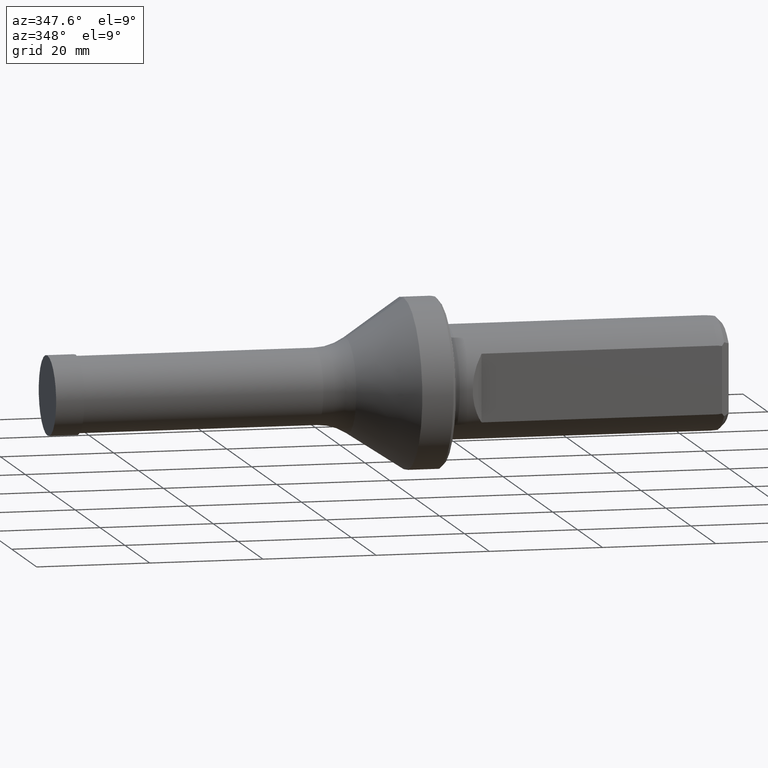
[diagram: clean part render]
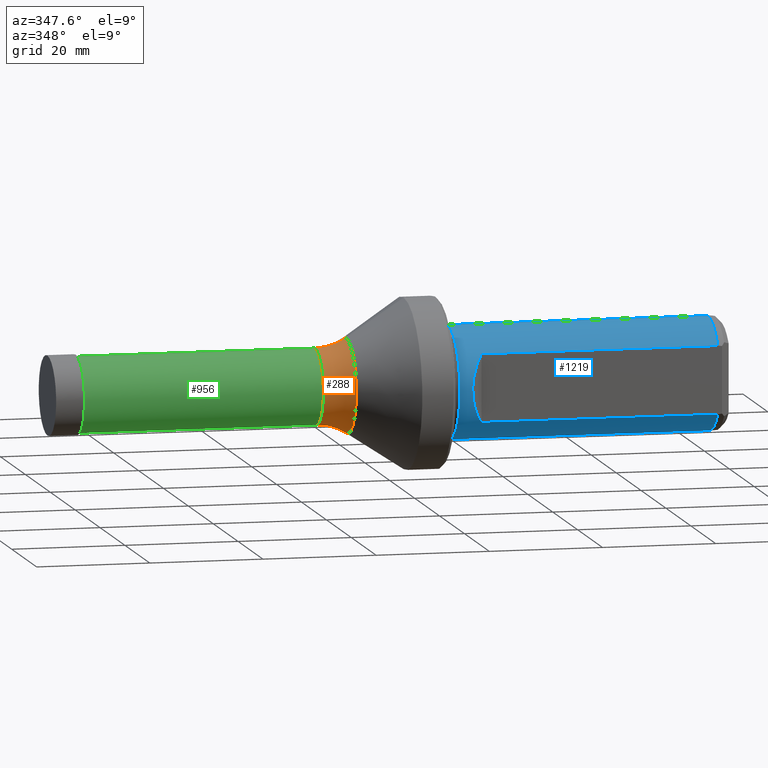
[diagram: same view with three faces highlighted in distinct colors, each labeled with its STEP entity id]
A machine part, auxiliary view with three faces highlighted in distinct colors.
Their STEP definitions:

[orange] entity #288 — the highlighted toroidal blend (fillet) surface has major radius 16.7 mm and minor (blend) radius 10 mm.
#18 = CARTESIAN_POINT ( 'NONE',  ( 52.26057916598296800, 0.0000000000000000000, 0.0000000000000000000 ) ) ;
#23 = DIRECTION ( 'NONE',  ( 0.0000000000000000000, -1.000000000000000000, 0.0000000000000000000 ) ) ;
#24 = DIRECTION ( 'NONE',  ( 0.0000000000000000000, 0.0000000000000000000, -1.000000000000000000 ) ) ;
#60 = DIRECTION ( 'NONE',  ( 0.0000000000000000000, -1.224646799147353200E-016, 1.000000000000000000 ) ) ;
#70 = CARTESIAN_POINT ( 'NONE',  ( 46.78499999999999700, 0.0000000000000000000, 0.0000000000000000000 ) ) ;
#104 = CARTESIAN_POINT ( 'NONE',  ( 46.78499999999999700, 2.045160154576080200E-015, -16.70000000000000300 ) ) ;
#105 = CARTESIAN_POINT ( 'NONE',  ( 46.78499999999999700, 8.205133554287266600E-016, -6.700000000000000200 ) ) ;
#134 = AXIS2_PLACEMENT_3D ( 'NONE', #322, #23, #24 ) ;
#138 = AXIS2_PLACEMENT_3D ( 'NONE', #18, #839, #1232 ) ;
#145 = AXIS2_PLACEMENT_3D ( 'NONE', #336, #333, #758 ) ;
#165 = AXIS2_PLACEMENT_3D ( 'NONE', #104, #316, #60 ) ;
#182 = ORIENTED_EDGE ( 'NONE', *, *, #882, .F. ) ;
#211 = DIRECTION ( 'NONE',  ( 0.0000000000000000000, 0.0000000000000000000, 1.000000000000000000 ) ) ;
#228 = DIRECTION ( 'NONE',  ( -1.000000000000000000, -0.0000000000000000000, -0.0000000000000000000 ) ) ;
#229 = ORIENTED_EDGE ( 'NONE', *, *, #866, .F. ) ;
#288 = ADVANCED_FACE ( 'NONE', ( #992 ), #1027, .F. ) ;
#316 = DIRECTION ( 'NONE',  ( -0.0000000000000000000, 1.000000000000000000, 1.224646799147353200E-016 ) ) ;
#322 = CARTESIAN_POINT ( 'NONE',  ( 46.78499999999999700, 0.0000000000000000000, 16.70000000000000300 ) ) ;
#333 = DIRECTION ( 'NONE',  ( -1.000000000000000000, -0.0000000000000000000, -0.0000000000000000000 ) ) ;
#336 = CARTESIAN_POINT ( 'NONE',  ( 46.78499999999999700, 0.0000000000000000000, 0.0000000000000000000 ) ) ;
#361 = CARTESIAN_POINT ( 'NONE',  ( 46.78499999999999700, 0.0000000000000000000, 6.700000000000000200 ) ) ;
#443 = AXIS2_PLACEMENT_3D ( 'NONE', #70, #228, #211 ) ;
#503 = CARTESIAN_POINT ( 'NONE',  ( 52.26057916598296800, 1.020415163614331900E-015, -8.332322138307837600 ) ) ;
#613 = CIRCLE ( 'NONE', #138, 8.332322138307835900 ) ;
#621 = CIRCLE ( 'NONE', #134, 9.999999999999998200 ) ;
#627 = VERTEX_POINT ( 'NONE', #105 ) ;
#631 = CIRCLE ( 'NONE', #165, 9.999999999999998200 ) ;
#636 = CIRCLE ( 'NONE', #145, 6.700000000000000200 ) ;
#758 = DIRECTION ( 'NONE',  ( 0.0000000000000000000, 0.0000000000000000000, 1.000000000000000000 ) ) ;
#839 = DIRECTION ( 'NONE',  ( -1.000000000000000000, -0.0000000000000000000, -0.0000000000000000000 ) ) ;
#866 = EDGE_CURVE ( 'NONE', #627, #1122, #636, .T. ) ;
#872 = EDGE_CURVE ( 'NONE', #627, #1060, #631, .T. ) ;
#881 = EDGE_CURVE ( 'NONE', #1060, #1126, #613, .T. ) ;
#882 = EDGE_CURVE ( 'NONE', #1122, #1126, #621, .T. ) ;
#901 = CARTESIAN_POINT ( 'NONE',  ( 52.26057916598296800, 0.0000000000000000000, 8.332322138307837600 ) ) ;
#992 = FACE_OUTER_BOUND ( 'NONE', #1029, .T. ) ;
#1027 = TOROIDAL_SURFACE ( 'NONE', #443, 16.70000000000000300, 9.999999999999998200 ) ;
#1029 = EDGE_LOOP ( 'NONE', ( #229, #1074, #1066, #182 ) ) ;
#1060 = VERTEX_POINT ( 'NONE', #503 ) ;
#1066 = ORIENTED_EDGE ( 'NONE', *, *, #881, .T. ) ;
#1074 = ORIENTED_EDGE ( 'NONE', *, *, #872, .T. ) ;
#1122 = VERTEX_POINT ( 'NONE', #361 ) ;
#1126 = VERTEX_POINT ( 'NONE', #901 ) ;
#1232 = DIRECTION ( 'NONE',  ( 0.0000000000000000000, 0.0000000000000000000, 1.000000000000000000 ) ) ;

[blue] entity #1219 — the highlighted cylindrical surface (partial cylindrical patch) has radius 10 mm, axis along (-1, -0, -0).
#2 = DIRECTION ( 'NONE',  ( -1.000000000000000000, -0.0000000000000000000, -0.0000000000000000000 ) ) ;
#7 = DIRECTION ( 'NONE',  ( 0.0000000000000000000, 0.0000000000000000000, 1.000000000000000000 ) ) ;
#36 = AXIS2_PLACEMENT_3D ( 'NONE', #330, #328, #538 ) ;
#79 = AXIS2_PLACEMENT_3D ( 'NONE', #125, #128, #131 ) ;
#102 = CARTESIAN_POINT ( 'NONE',  ( -0.5000000000000005600, 1.224646799147353300E-015, -10.00000000000000000 ) ) ;
#125 = CARTESIAN_POINT ( 'NONE',  ( 70.17953698905211000, 0.0000000000000000000, 0.0000000000000000000 ) ) ;
#128 = DIRECTION ( 'NONE',  ( 1.000000000000000000, -0.0000000000000000000, -0.0000000000000000000 ) ) ;
#131 = DIRECTION ( 'NONE',  ( 0.0000000000000000000, 0.0000000000000000000, -1.000000000000000000 ) ) ;
#187 = CARTESIAN_POINT ( 'NONE',  ( -0.5000000000000018900, -7.999999999999976000, 6.000000000000031100 ) ) ;
#189 = VERTEX_POINT ( 'NONE', #1212 ) ;
#207 = DIRECTION ( 'NONE',  ( 1.000000000000000000, 0.0000000000000000000, 0.0000000000000000000 ) ) ;
#208 = CARTESIAN_POINT ( 'NONE',  ( -0.5000000000000018900, -7.999999999999976000, -6.000000000000031100 ) ) ;
#246 = CARTESIAN_POINT ( 'NONE',  ( 70.17953698905211000, 0.0000000000000000000, -9.999999999999998200 ) ) ;
#254 = CARTESIAN_POINT ( 'NONE',  ( 74.45000000000000300, -7.999999999999991100, -6.000000000000034600 ) ) ;
#258 = ORIENTED_EDGE ( 'NONE', *, *, #1020, .T. ) ;
#277 = EDGE_LOOP ( 'NONE', ( #660, #258, #370, #709, #1089, #517, #739, #530 ) ) ;
#302 = DIRECTION ( 'NONE',  ( -1.000000000000000000, -0.0000000000000000000, -0.0000000000000000000 ) ) ;
#320 = AXIS2_PLACEMENT_3D ( 'NONE', #1230, #2, #7 ) ;
#328 = DIRECTION ( 'NONE',  ( -1.000000000000000000, -0.0000000000000000000, -0.0000000000000000000 ) ) ;
#330 = CARTESIAN_POINT ( 'NONE',  ( 116.2000000000001300, 0.0000000000000000000, 0.0000000000000000000 ) ) ;
#341 = CARTESIAN_POINT ( 'NONE',  ( -0.5000000000000005600, 0.0000000000000000000, 10.00000000000000000 ) ) ;
#346 = AXIS2_PLACEMENT_3D ( 'NONE', #742, #744, #738 ) ;
#348 = CARTESIAN_POINT ( 'NONE',  ( 116.2000000000001300, 1.224646799147353300E-015, -10.00000000000000000 ) ) ;
#370 = ORIENTED_EDGE ( 'NONE', *, *, #1023, .F. ) ;
#419 = FACE_OUTER_BOUND ( 'NONE', #277, .T. ) ;
#439 = VECTOR ( 'NONE', #527, 1000.000000000000000 ) ;
#442 = LINE ( 'NONE', #187, #439 ) ;
#444 = VECTOR ( 'NONE', #207, 1000.000000000000000 ) ;
#452 = CIRCLE ( 'NONE', #36, 10.00000000000000000 ) ;
#455 = LINE ( 'NONE', #208, #444 ) ;
#491 = VERTEX_POINT ( 'NONE', #933 ) ;
#493 = CIRCLE ( 'NONE', #79, 10.00000000000000000 ) ;
#517 = ORIENTED_EDGE ( 'NONE', *, *, #652, .T. ) ;
#524 = CARTESIAN_POINT ( 'NONE',  ( 74.45000000000000300, -7.999999999999991100, -6.000000000000034600 ) ) ;
#526 = CARTESIAN_POINT ( 'NONE',  ( 71.68076923076922900, -10.76923076923077700, -2.307692307692324400 ) ) ;
#527 = DIRECTION ( 'NONE',  ( -1.000000000000000000, -0.0000000000000000000, -0.0000000000000000000 ) ) ;
#529 = CARTESIAN_POINT ( 'NONE',  ( 74.45000000000000300, -7.999999999999991100, 6.000000000000025800 ) ) ;
#530 = ORIENTED_EDGE ( 'NONE', *, *, #983, .T. ) ;
#536 = CARTESIAN_POINT ( 'NONE',  ( 71.68076923076922900, -10.76923076923077700, 2.307692307692316800 ) ) ;
#538 = DIRECTION ( 'NONE',  ( 0.0000000000000000000, 0.0000000000000000000, 1.000000000000000000 ) ) ;
#614 = VECTOR ( 'NONE', #740, 1000.000000000000000 ) ;
#625 = LINE ( 'NONE', #341, #614 ) ;
#643 = CARTESIAN_POINT ( 'NONE',  ( 116.2000000000001300, 0.0000000000000000000, 10.00000000000000000 ) ) ;
#652 = EDGE_CURVE ( 'NONE', #1164, #913, #894, .T. ) ;
#660 = ORIENTED_EDGE ( 'NONE', *, *, #786, .F. ) ;
#676 = CARTESIAN_POINT ( 'NONE',  ( 116.2000000000001000, -7.999999999999998200, 6.000000000000007100 ) ) ;
#709 = ORIENTED_EDGE ( 'NONE', *, *, #1033, .F. ) ;
#714 =( BOUNDED_CURVE ( )  B_SPLINE_CURVE ( 3, ( #529, #536, #526, #524 ),
 .UNSPECIFIED., .F., .F. ) 
 B_SPLINE_CURVE_WITH_KNOTS ( ( 4, 4 ),
 ( 5.639684198386299300, 6.926686415972874000 ),
 .UNSPECIFIED. ) 
 CURVE ( )  GEOMETRIC_REPRESENTATION_ITEM ( )  RATIONAL_B_SPLINE_CURVE ( ( 1.000000000000000000, 0.8666666666666653600, 0.8666666666666653600, 1.000000000000000000 ) ) 
 REPRESENTATION_ITEM ( '' )  );
#718 = VECTOR ( 'NONE', #302, 1000.000000000000000 ) ;
#738 = DIRECTION ( 'NONE',  ( 0.0000000000000000000, 0.0000000000000000000, 1.000000000000000000 ) ) ;
#739 = ORIENTED_EDGE ( 'NONE', *, *, #868, .T. ) ;
#740 = DIRECTION ( 'NONE',  ( -1.000000000000000000, -0.0000000000000000000, -0.0000000000000000000 ) ) ;
#742 = CARTESIAN_POINT ( 'NONE',  ( -0.5000000000000005600, 0.0000000000000000000, 0.0000000000000000000 ) ) ;
#744 = DIRECTION ( 'NONE',  ( -1.000000000000000000, -0.0000000000000000000, -0.0000000000000000000 ) ) ;
#748 = LINE ( 'NONE', #102, #718 ) ;
#779 = VERTEX_POINT ( 'NONE', #246 ) ;
#786 = EDGE_CURVE ( 'NONE', #1139, #779, #748, .T. ) ;
#788 = CARTESIAN_POINT ( 'NONE',  ( 116.1999999999805600, -7.999999999999998200, -6.000000000002613900 ) ) ;
#806 = CYLINDRICAL_SURFACE ( 'NONE', #346, 10.00000000000000000 ) ;
#820 = VERTEX_POINT ( 'NONE', #254 ) ;
#868 = EDGE_CURVE ( 'NONE', #913, #491, #625, .T. ) ;
#894 = CIRCLE ( 'NONE', #320, 10.00000000000000000 ) ;
#913 = VERTEX_POINT ( 'NONE', #643 ) ;
#933 = CARTESIAN_POINT ( 'NONE',  ( 70.17953698905211000, 1.224646799147353300E-015, 9.999999999999998200 ) ) ;
#983 = EDGE_CURVE ( 'NONE', #491, #779, #493, .T. ) ;
#1020 = EDGE_CURVE ( 'NONE', #1139, #1221, #452, .T. ) ;
#1023 = EDGE_CURVE ( 'NONE', #820, #1221, #455, .T. ) ;
#1033 = EDGE_CURVE ( 'NONE', #189, #820, #714, .T. ) ;
#1043 = EDGE_CURVE ( 'NONE', #1164, #189, #442, .T. ) ;
#1089 = ORIENTED_EDGE ( 'NONE', *, *, #1043, .F. ) ;
#1139 = VERTEX_POINT ( 'NONE', #348 ) ;
#1164 = VERTEX_POINT ( 'NONE', #676 ) ;
#1212 = CARTESIAN_POINT ( 'NONE',  ( 74.45000000000000300, -7.999999999999991100, 6.000000000000025800 ) ) ;
#1219 = ADVANCED_FACE ( 'NONE', ( #419 ), #806, .T. ) ;
#1221 = VERTEX_POINT ( 'NONE', #788 ) ;
#1230 = CARTESIAN_POINT ( 'NONE',  ( 116.2000000000001300, 0.0000000000000000000, 0.0000000000000000000 ) ) ;

[green] entity #956 — the highlighted cylindrical surface (partial cylindrical patch) has radius 6.7 mm, axis along (-1, -0, -0).
#90 = AXIS2_PLACEMENT_3D ( 'NONE', #611, #1215, #304 ) ;
#96 = AXIS2_PLACEMENT_3D ( 'NONE', #509, #335, #647 ) ;
#105 = CARTESIAN_POINT ( 'NONE',  ( 46.78499999999999700, 8.205133554287266600E-016, -6.700000000000000200 ) ) ;
#127 = ORIENTED_EDGE ( 'NONE', *, *, #966, .F. ) ;
#135 = EDGE_LOOP ( 'NONE', ( #127, #412, #311, #186 ) ) ;
#145 = AXIS2_PLACEMENT_3D ( 'NONE', #336, #333, #758 ) ;
#186 = ORIENTED_EDGE ( 'NONE', *, *, #974, .F. ) ;
#304 = DIRECTION ( 'NONE',  ( 0.0000000000000000000, 0.0000000000000000000, 1.000000000000000000 ) ) ;
#311 = ORIENTED_EDGE ( 'NONE', *, *, #1117, .T. ) ;
#333 = DIRECTION ( 'NONE',  ( -1.000000000000000000, -0.0000000000000000000, -0.0000000000000000000 ) ) ;
#335 = DIRECTION ( 'NONE',  ( -1.000000000000000000, -0.0000000000000000000, -0.0000000000000000000 ) ) ;
#336 = CARTESIAN_POINT ( 'NONE',  ( 46.78499999999999700, 0.0000000000000000000, 0.0000000000000000000 ) ) ;
#345 = DIRECTION ( 'NONE',  ( -1.000000000000000000, -0.0000000000000000000, -0.0000000000000000000 ) ) ;
#361 = CARTESIAN_POINT ( 'NONE',  ( 46.78499999999999700, 0.0000000000000000000, 6.700000000000000200 ) ) ;
#382 = CARTESIAN_POINT ( 'NONE',  ( 0.0000000000000000000, 0.0000000000000000000, 6.700000000000000200 ) ) ;
#404 = VECTOR ( 'NONE', #345, 1000.000000000000000 ) ;
#406 = LINE ( 'NONE', #382, #404 ) ;
#412 = ORIENTED_EDGE ( 'NONE', *, *, #866, .T. ) ;
#413 = CARTESIAN_POINT ( 'NONE',  ( 4.500000000000000000, 8.205133554287266600E-016, -6.700000000000000200 ) ) ;
#509 = CARTESIAN_POINT ( 'NONE',  ( 0.0000000000000000000, 0.0000000000000000000, 0.0000000000000000000 ) ) ;
#510 = CIRCLE ( 'NONE', #90, 6.700000000000000200 ) ;
#523 = VECTOR ( 'NONE', #766, 1000.000000000000000 ) ;
#533 = CYLINDRICAL_SURFACE ( 'NONE', #96, 6.700000000000000200 ) ;
#535 = LINE ( 'NONE', #931, #523 ) ;
#541 = FACE_OUTER_BOUND ( 'NONE', #135, .T. ) ;
#611 = CARTESIAN_POINT ( 'NONE',  ( 4.500000000000000000, 0.0000000000000000000, 0.0000000000000000000 ) ) ;
#627 = VERTEX_POINT ( 'NONE', #105 ) ;
#636 = CIRCLE ( 'NONE', #145, 6.700000000000000200 ) ;
#647 = DIRECTION ( 'NONE',  ( 0.0000000000000000000, 0.0000000000000000000, 1.000000000000000000 ) ) ;
#758 = DIRECTION ( 'NONE',  ( 0.0000000000000000000, 0.0000000000000000000, 1.000000000000000000 ) ) ;
#766 = DIRECTION ( 'NONE',  ( -1.000000000000000000, -0.0000000000000000000, -0.0000000000000000000 ) ) ;
#773 = CARTESIAN_POINT ( 'NONE',  ( 4.500000000000000000, 0.0000000000000000000, 6.700000000000000200 ) ) ;
#866 = EDGE_CURVE ( 'NONE', #627, #1122, #636, .T. ) ;
#871 = VERTEX_POINT ( 'NONE', #773 ) ;
#931 = CARTESIAN_POINT ( 'NONE',  ( 0.0000000000000000000, 8.205133554287266600E-016, -6.700000000000000200 ) ) ;
#956 = ADVANCED_FACE ( 'NONE', ( #541 ), #533, .T. ) ;
#966 = EDGE_CURVE ( 'NONE', #627, #1073, #535, .T. ) ;
#974 = EDGE_CURVE ( 'NONE', #1073, #871, #510, .T. ) ;
#1073 = VERTEX_POINT ( 'NONE', #413 ) ;
#1117 = EDGE_CURVE ( 'NONE', #1122, #871, #406, .T. ) ;
#1122 = VERTEX_POINT ( 'NONE', #361 ) ;
#1215 = DIRECTION ( 'NONE',  ( -1.000000000000000000, 0.0000000000000000000, 0.0000000000000000000 ) ) ;